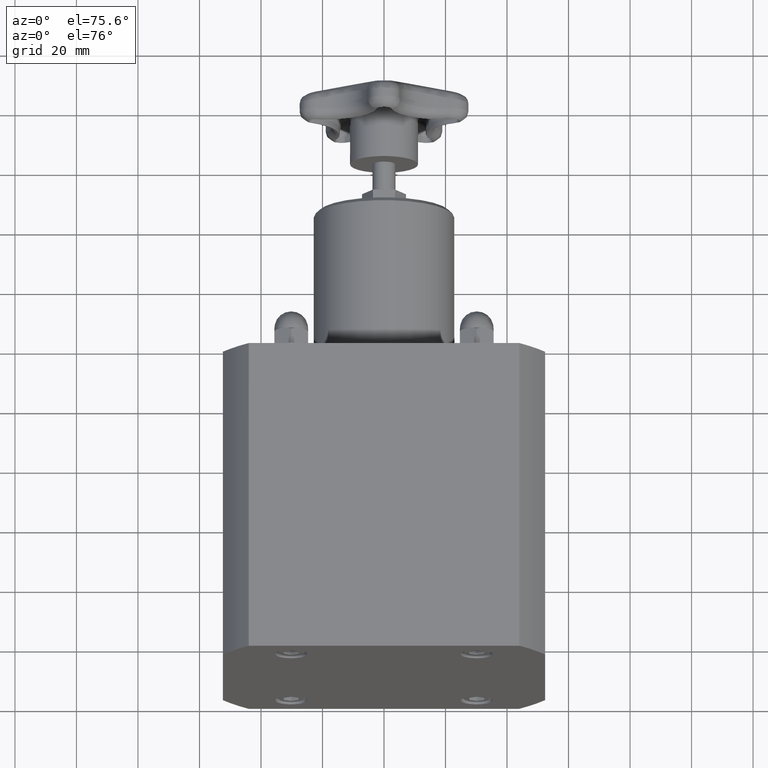
[diagram: clean part render]
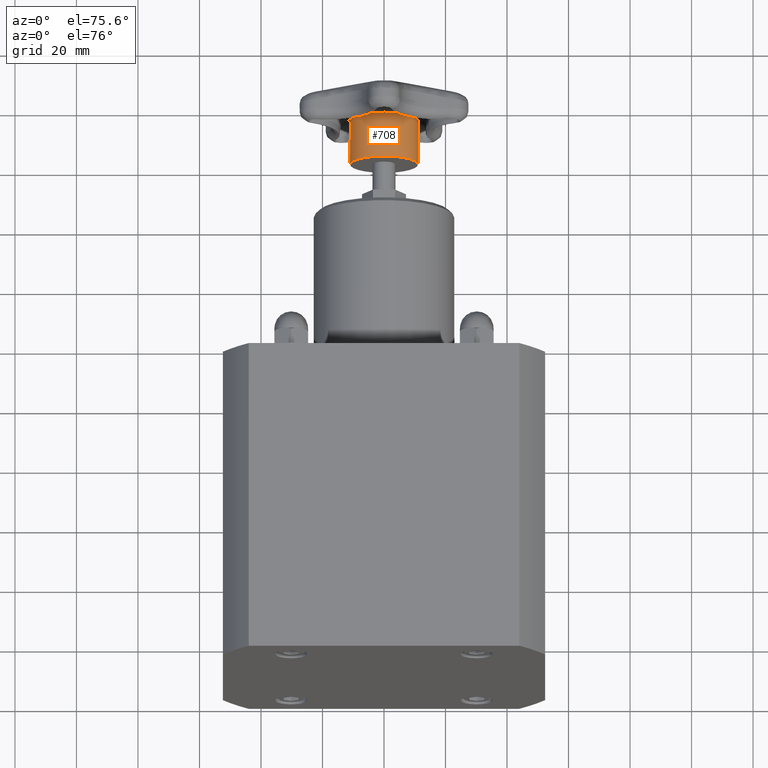
[diagram: same view with one face highlighted and labeled with its STEP entity id]
A machine part, auxiliary view. The second image highlights one B-rep face of the part: STEP entity #708.
In plain terms, the highlighted cylindrical surface (bore or boss wall) has radius 11.049 mm, axis along (0, -1, 0).
Its self-contained STEP definition (entity closure, byte-faithful):
#183=CARTESIAN_POINT('',(0.435000000000000,6.777500000000000,-3.278218E-016));
#184=VERTEX_POINT('',#183);
#185=CARTESIAN_POINT('',(-7.810569E-017,6.777500000000000,-3.278218E-016));
#186=DIRECTION('',(0.0,-1.0,0.0));
#187=DIRECTION('',(1.0,0.0,0.0));
#188=AXIS2_PLACEMENT_3D('',#185,#186,#187);
#189=CIRCLE('',#188,0.435000000000000);
#190=EDGE_CURVE('',#184,#184,#189,.T.);
#393=CARTESIAN_POINT('',(0.435000000000000,7.357499999999999,-6.988169E-016));
#394=VERTEX_POINT('',#393);
#395=CARTESIAN_POINT('',(-7.810569E-017,7.357499999999999,-3.278218E-016));
#396=DIRECTION('',(0.0,1.0,0.0));
#397=DIRECTION('',(-1.0,0.0,0.0));
#398=AXIS2_PLACEMENT_3D('',#395,#396,#397);
#399=CIRCLE('',#398,0.435000000000000);
#400=EDGE_CURVE('',#394,#394,#399,.T.);
#697=CARTESIAN_POINT('',(-7.810569E-017,7.027500000000001,-3.278218E-016));
#698=DIRECTION('',(2.063892E-049,-1.0,1.334626E-033));
#699=DIRECTION('',(1.0,0.0,0.0));
#700=AXIS2_PLACEMENT_3D('',#697,#698,#699);
#701=CYLINDRICAL_SURFACE('',#700,0.435000000000000);
#702=ORIENTED_EDGE('',*,*,#190,.F.);
#703=EDGE_LOOP('',(#702));
#704=FACE_OUTER_BOUND('',#703,.T.);
#705=ORIENTED_EDGE('',*,*,#400,.F.);
#706=EDGE_LOOP('',(#705));
#707=FACE_BOUND('',#706,.T.);
#708=ADVANCED_FACE('',(#704,#707),#701,.T.);